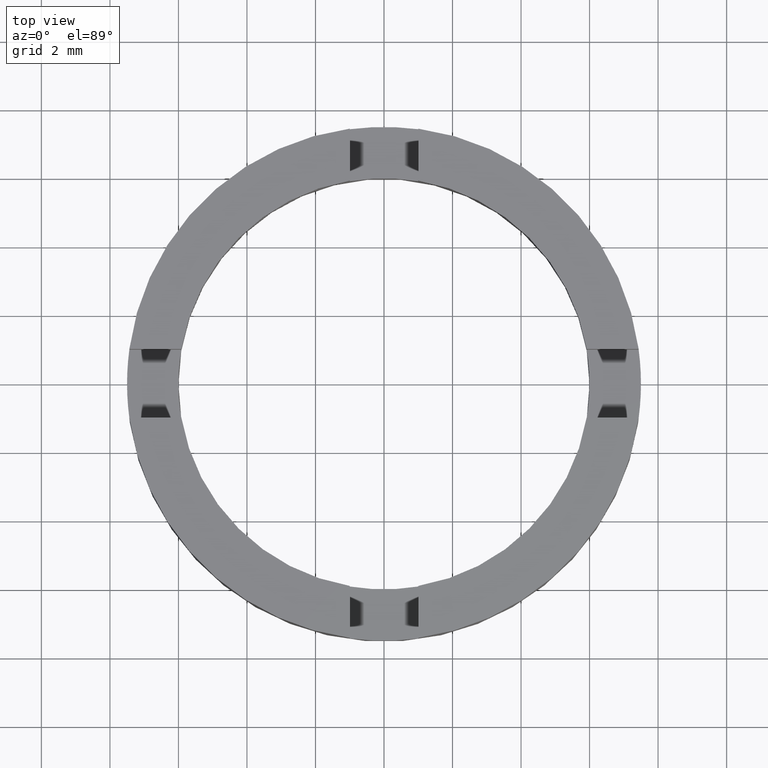
[diagram: clean part render]
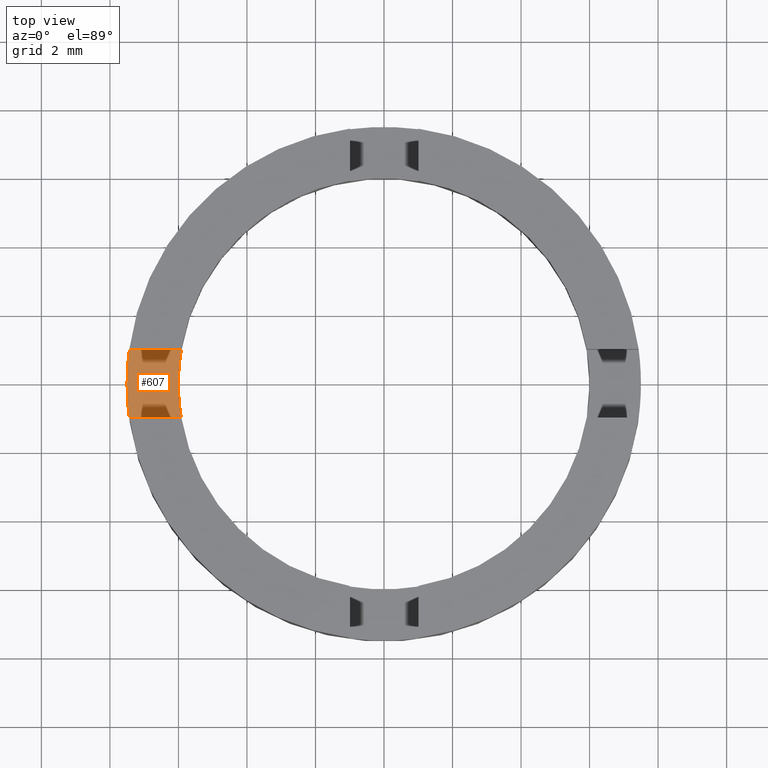
[diagram: same view with one face highlighted and labeled with its STEP entity id]
A machine part, top view. The second image highlights one B-rep face of the part: STEP entity #607.
In plain terms, the highlighted planar face has unit normal (-0, 0, 1).
Its self-contained STEP definition (entity closure, byte-faithful):
#33 = ORIENTED_EDGE ( 'NONE', *, *, #645, .F. ) ;
#40 = DIRECTION ( 'NONE',  ( 1.000000000000000000, -3.744111502316608908E-15, 0.000000000000000000 ) ) ;
#53 = ORIENTED_EDGE ( 'NONE', *, *, #715, .T. ) ;
#71 = EDGE_CURVE ( 'NONE', #136, #535, #304, .T. ) ;
#77 = FACE_OUTER_BOUND ( 'NONE', #280, .T. ) ;
#78 = DIRECTION ( 'NONE',  ( -0.000000000000000000, 0.000000000000000000, 1.000000000000000000 ) ) ;
#102 = CIRCLE ( 'NONE', #302, 7.500000000000000000 ) ;
#136 = VERTEX_POINT ( 'NONE', #777 ) ;
#163 = DIRECTION ( 'NONE',  ( 1.000000000000000000, 7.993605777301127091E-15, 0.000000000000000000 ) ) ;
#210 = CARTESIAN_POINT ( 'NONE',  ( -3.744111502316612853E-15, -1.000000000000001110, 1.500000000000000000 ) ) ;
#215 = CARTESIAN_POINT ( 'NONE',  ( 0.000000000000000000, 0.000000000000000000, 1.500000000000000000 ) ) ;
#251 = DIRECTION ( 'NONE',  ( -0.000000000000000000, 0.000000000000000000, 1.000000000000000000 ) ) ;
#264 = AXIS2_PLACEMENT_3D ( 'NONE', #599, #624, #692 ) ;
#270 = CARTESIAN_POINT ( 'NONE',  ( 0.000000000000000000, 0.000000000000000000, 1.500000000000000000 ) ) ;
#280 = EDGE_LOOP ( 'NONE', ( #33, #420, #681, #581, #53, #670 ) ) ;
#302 = AXIS2_PLACEMENT_3D ( 'NONE', #215, #251, #351 ) ;
#304 = CIRCLE ( 'NONE', #706, 6.000000000000000888 ) ;
#318 = VERTEX_POINT ( 'NONE', #687 ) ;
#340 = LINE ( 'NONE', #439, #611 ) ;
#351 = DIRECTION ( 'NONE',  ( 1.000000000000000000, 0.000000000000000000, 0.000000000000000000 ) ) ;
#359 = AXIS2_PLACEMENT_3D ( 'NONE', #501, #560, #163 ) ;
#371 = VECTOR ( 'NONE', #40, 1000.000000000000000 ) ;
#379 = CIRCLE ( 'NONE', #359, 6.000000000000000888 ) ;
#397 = PLANE ( 'NONE',  #776 ) ;
#405 = EDGE_CURVE ( 'NONE', #685, #556, #625, .T. ) ;
#420 = ORIENTED_EDGE ( 'NONE', *, *, #766, .T. ) ;
#439 = CARTESIAN_POINT ( 'NONE',  ( 3.729655473350131309E-15, 0.9999999999999988898, 1.500000000000000000 ) ) ;
#443 = DIRECTION ( 'NONE',  ( 1.000000000000000000, 0.000000000000000000, 0.000000000000000000 ) ) ;
#455 = CARTESIAN_POINT ( 'NONE',  ( -7.500000000000000000, 0.000000000000000000, 1.500000000000000000 ) ) ;
#488 = CARTESIAN_POINT ( 'NONE',  ( 0.000000000000000000, 0.000000000000000000, 1.500000000000000000 ) ) ;
#501 = CARTESIAN_POINT ( 'NONE',  ( 0.000000000000000000, 0.000000000000000000, 1.500000000000000000 ) ) ;
#520 = CARTESIAN_POINT ( 'NONE',  ( -7.433034373659249461, 1.000000000000026645, 1.500000000000000000 ) ) ;
#530 = CARTESIAN_POINT ( 'NONE',  ( -5.916079783099614353, 1.000000000000021094, 1.500000000000000000 ) ) ;
#535 = VERTEX_POINT ( 'NONE', #530 ) ;
#542 = DIRECTION ( 'NONE',  ( 1.000000000000000000, 0.000000000000000000, 0.000000000000000000 ) ) ;
#556 = VERTEX_POINT ( 'NONE', #703 ) ;
#560 = DIRECTION ( 'NONE',  ( 0.000000000000000000, -0.000000000000000000, -1.000000000000000000 ) ) ;
#581 = ORIENTED_EDGE ( 'NONE', *, *, #716, .T. ) ;
#599 = CARTESIAN_POINT ( 'NONE',  ( 0.000000000000000000, 0.000000000000000000, 1.500000000000000000 ) ) ;
#607 = ADVANCED_FACE ( 'NONE', ( #77 ), #397, .T. ) ;
#611 = VECTOR ( 'NONE', #647, 1000.000000000000000 ) ;
#624 = DIRECTION ( 'NONE',  ( -0.000000000000000000, 0.000000000000000000, 1.000000000000000000 ) ) ;
#625 = CIRCLE ( 'NONE', #264, 7.500000000000000000 ) ;
#645 = EDGE_CURVE ( 'NONE', #657, #535, #340, .T. ) ;
#647 = DIRECTION ( 'NONE',  ( 1.000000000000000000, -3.729655473350135253E-15, 0.000000000000000000 ) ) ;
#649 = LINE ( 'NONE', #210, #371 ) ;
#657 = VERTEX_POINT ( 'NONE', #520 ) ;
#670 = ORIENTED_EDGE ( 'NONE', *, *, #71, .T. ) ;
#681 = ORIENTED_EDGE ( 'NONE', *, *, #405, .T. ) ;
#685 = VERTEX_POINT ( 'NONE', #455 ) ;
#687 = CARTESIAN_POINT ( 'NONE',  ( -5.916079783099620570, -0.9999999999999790168, 1.500000000000000000 ) ) ;
#692 = DIRECTION ( 'NONE',  ( 1.000000000000000000, 0.000000000000000000, 0.000000000000000000 ) ) ;
#703 = CARTESIAN_POINT ( 'NONE',  ( -7.433034373659256566, -0.9999999999999733546, 1.500000000000000000 ) ) ;
#706 = AXIS2_PLACEMENT_3D ( 'NONE', #270, #751, #542 ) ;
#715 = EDGE_CURVE ( 'NONE', #318, #136, #379, .T. ) ;
#716 = EDGE_CURVE ( 'NONE', #556, #318, #649, .T. ) ;
#751 = DIRECTION ( 'NONE',  ( 0.000000000000000000, -0.000000000000000000, -1.000000000000000000 ) ) ;
#766 = EDGE_CURVE ( 'NONE', #657, #685, #102, .T. ) ;
#776 = AXIS2_PLACEMENT_3D ( 'NONE', #488, #78, #443 ) ;
#777 = CARTESIAN_POINT ( 'NONE',  ( -6.000000000000000888, 0.000000000000000000, 1.500000000000000000 ) ) ;